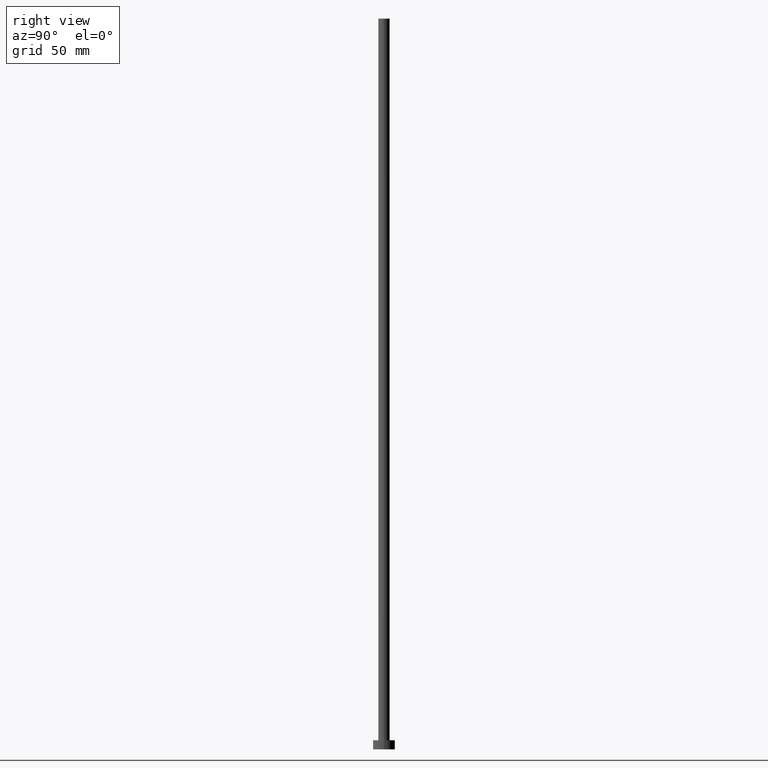
[diagram: clean part render]
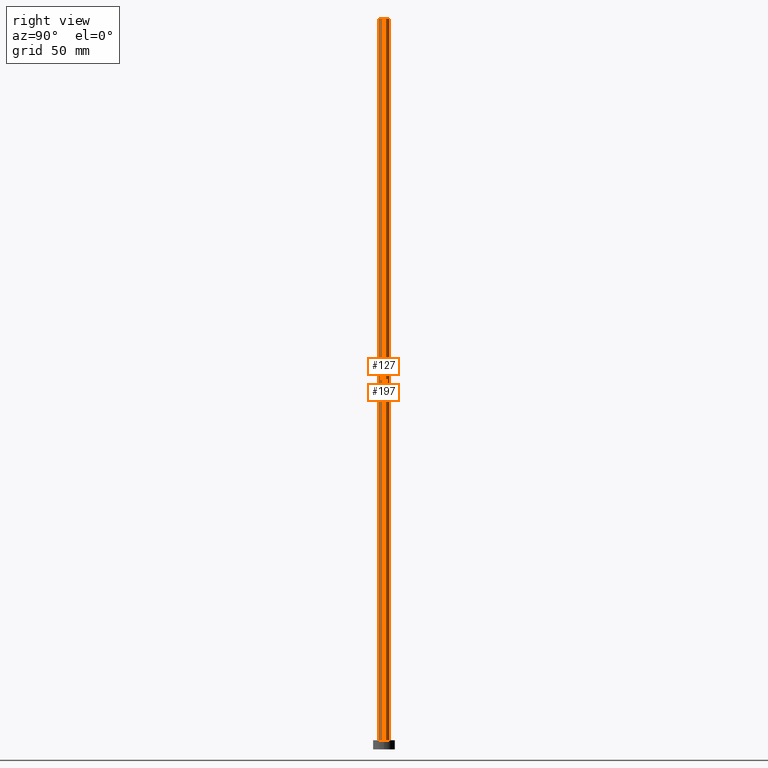
[diagram: same view with one multi-face feature highlighted, each face labeled with its STEP entity id]
A machine part, right view. The highlighted faces form ONE feature: a constant-radius fillet chain: 2 tangent blend faces with common blend radius 3.1 mm. The faces share edges in the B-rep.
Their STEP definitions:
[1] entity #127 (Cylinder):
#2 = CARTESIAN_POINT ( 'NONE',  ( 0.000000000000000000, 0.000000000000000000, 400.0000000000000000 ) ) ;
#11 = EDGE_CURVE ( 'NONE', #109, #32, #248, .T. ) ;
#15 = VERTEX_POINT ( 'NONE', #210 ) ;
#23 = DIRECTION ( 'NONE',  ( -0.000000000000000000, -0.000000000000000000, -1.000000000000000000 ) ) ;
#25 = VERTEX_POINT ( 'NONE', #168 ) ;
#28 = DIRECTION ( 'NONE',  ( 0.000000000000000000, 0.000000000000000000, 1.000000000000000000 ) ) ;
#32 = VERTEX_POINT ( 'NONE', #238 ) ;
#36 = EDGE_CURVE ( 'NONE', #109, #15, #208, .T. ) ;
#51 = EDGE_LOOP ( 'NONE', ( #201, #76, #134, #213 ) ) ;
#61 = CARTESIAN_POINT ( 'NONE',  ( 0.000000000000000000, 0.000000000000000000, 5.000000000000000000 ) ) ;
#69 = CARTESIAN_POINT ( 'NONE',  ( -3.100000000000000089, 0.000000000000000000, 400.0000000000000000 ) ) ;
#76 = ORIENTED_EDGE ( 'NONE', *, *, #36, .F. ) ;
#81 = EDGE_CURVE ( 'NONE', #15, #25, #218, .T. ) ;
#87 = DIRECTION ( 'NONE',  ( 1.000000000000000000, 0.000000000000000000, 0.000000000000000000 ) ) ;
#97 = AXIS2_PLACEMENT_3D ( 'NONE', #113, #148, #87 ) ;
#109 = VERTEX_POINT ( 'NONE', #170 ) ;
#112 = VECTOR ( 'NONE', #144, 1000.000000000000000 ) ;
#113 = CARTESIAN_POINT ( 'NONE',  ( 0.000000000000000000, 0.000000000000000000, 400.0000000000000000 ) ) ;
#120 = AXIS2_PLACEMENT_3D ( 'NONE', #61, #28, #137 ) ;
#123 = EDGE_CURVE ( 'NONE', #32, #25, #187, .T. ) ;
#127 = ADVANCED_FACE ( 'NONE', ( #175 ), #135, .T. ) ;
#134 = ORIENTED_EDGE ( 'NONE', *, *, #11, .T. ) ;
#135 = CYLINDRICAL_SURFACE ( 'NONE', #141, 3.100000000000000089 ) ;
#137 = DIRECTION ( 'NONE',  ( 1.000000000000000000, 0.000000000000000000, 0.000000000000000000 ) ) ;
#141 = AXIS2_PLACEMENT_3D ( 'NONE', #2, #176, #153 ) ;
#144 = DIRECTION ( 'NONE',  ( -0.000000000000000000, -0.000000000000000000, -1.000000000000000000 ) ) ;
#148 = DIRECTION ( 'NONE',  ( 0.000000000000000000, 0.000000000000000000, 1.000000000000000000 ) ) ;
#153 = DIRECTION ( 'NONE',  ( -1.000000000000000000, 0.000000000000000000, 0.000000000000000000 ) ) ;
#165 = VECTOR ( 'NONE', #23, 1000.000000000000000 ) ;
#168 = CARTESIAN_POINT ( 'NONE',  ( 3.100000000000000089, 3.796405077356793932E-16, 5.000000000000000000 ) ) ;
#170 = CARTESIAN_POINT ( 'NONE',  ( -3.100000000000000089, 0.000000000000000000, 400.0000000000000000 ) ) ;
#175 = FACE_OUTER_BOUND ( 'NONE', #51, .T. ) ;
#176 = DIRECTION ( 'NONE',  ( -0.000000000000000000, -0.000000000000000000, -1.000000000000000000 ) ) ;
#187 = CIRCLE ( 'NONE', #120, 3.100000000000000089 ) ;
#192 = CARTESIAN_POINT ( 'NONE',  ( 3.100000000000000089, 3.796405077356793932E-16, 400.0000000000000000 ) ) ;
#201 = ORIENTED_EDGE ( 'NONE', *, *, #81, .F. ) ;
#208 = CIRCLE ( 'NONE', #97, 3.100000000000000089 ) ;
#210 = CARTESIAN_POINT ( 'NONE',  ( 3.100000000000000089, 3.796405077356793932E-16, 400.0000000000000000 ) ) ;
#213 = ORIENTED_EDGE ( 'NONE', *, *, #123, .T. ) ;
#218 = LINE ( 'NONE', #192, #165 ) ;
#238 = CARTESIAN_POINT ( 'NONE',  ( -3.100000000000000089, 0.000000000000000000, 5.000000000000000000 ) ) ;
#248 = LINE ( 'NONE', #69, #112 ) ;
[2] entity #197 (Cylinder):
#4 = DIRECTION ( 'NONE',  ( -0.000000000000000000, -0.000000000000000000, -1.000000000000000000 ) ) ;
#6 = ORIENTED_EDGE ( 'NONE', *, *, #38, .T. ) ;
#11 = EDGE_CURVE ( 'NONE', #109, #32, #248, .T. ) ;
#15 = VERTEX_POINT ( 'NONE', #210 ) ;
#23 = DIRECTION ( 'NONE',  ( -0.000000000000000000, -0.000000000000000000, -1.000000000000000000 ) ) ;
#25 = VERTEX_POINT ( 'NONE', #168 ) ;
#26 = DIRECTION ( 'NONE',  ( 0.000000000000000000, 0.000000000000000000, 1.000000000000000000 ) ) ;
#27 = AXIS2_PLACEMENT_3D ( 'NONE', #214, #118, #189 ) ;
#32 = VERTEX_POINT ( 'NONE', #238 ) ;
#35 = ORIENTED_EDGE ( 'NONE', *, *, #81, .T. ) ;
#38 = EDGE_CURVE ( 'NONE', #25, #32, #107, .T. ) ;
#52 = ORIENTED_EDGE ( 'NONE', *, *, #104, .F. ) ;
#69 = CARTESIAN_POINT ( 'NONE',  ( -3.100000000000000089, 0.000000000000000000, 400.0000000000000000 ) ) ;
#81 = EDGE_CURVE ( 'NONE', #15, #25, #218, .T. ) ;
#104 = EDGE_CURVE ( 'NONE', #15, #109, #183, .T. ) ;
#107 = CIRCLE ( 'NONE', #27, 3.100000000000000089 ) ;
#109 = VERTEX_POINT ( 'NONE', #170 ) ;
#112 = VECTOR ( 'NONE', #144, 1000.000000000000000 ) ;
#118 = DIRECTION ( 'NONE',  ( 0.000000000000000000, 0.000000000000000000, 1.000000000000000000 ) ) ;
#124 = CYLINDRICAL_SURFACE ( 'NONE', #220, 3.100000000000000089 ) ;
#144 = DIRECTION ( 'NONE',  ( -0.000000000000000000, -0.000000000000000000, -1.000000000000000000 ) ) ;
#155 = DIRECTION ( 'NONE',  ( -1.000000000000000000, 0.000000000000000000, 0.000000000000000000 ) ) ;
#165 = VECTOR ( 'NONE', #23, 1000.000000000000000 ) ;
#168 = CARTESIAN_POINT ( 'NONE',  ( 3.100000000000000089, 3.796405077356793932E-16, 5.000000000000000000 ) ) ;
#170 = CARTESIAN_POINT ( 'NONE',  ( -3.100000000000000089, 0.000000000000000000, 400.0000000000000000 ) ) ;
#172 = DIRECTION ( 'NONE',  ( 1.000000000000000000, 0.000000000000000000, 0.000000000000000000 ) ) ;
#183 = CIRCLE ( 'NONE', #221, 3.100000000000000089 ) ;
#189 = DIRECTION ( 'NONE',  ( 1.000000000000000000, 0.000000000000000000, 0.000000000000000000 ) ) ;
#192 = CARTESIAN_POINT ( 'NONE',  ( 3.100000000000000089, 3.796405077356793932E-16, 400.0000000000000000 ) ) ;
#194 = CARTESIAN_POINT ( 'NONE',  ( 0.000000000000000000, 0.000000000000000000, 400.0000000000000000 ) ) ;
#197 = ADVANCED_FACE ( 'NONE', ( #241 ), #124, .T. ) ;
#210 = CARTESIAN_POINT ( 'NONE',  ( 3.100000000000000089, 3.796405077356793932E-16, 400.0000000000000000 ) ) ;
#214 = CARTESIAN_POINT ( 'NONE',  ( 0.000000000000000000, 0.000000000000000000, 5.000000000000000000 ) ) ;
#216 = ORIENTED_EDGE ( 'NONE', *, *, #11, .F. ) ;
#217 = CARTESIAN_POINT ( 'NONE',  ( 0.000000000000000000, 0.000000000000000000, 400.0000000000000000 ) ) ;
#218 = LINE ( 'NONE', #192, #165 ) ;
#220 = AXIS2_PLACEMENT_3D ( 'NONE', #217, #4, #155 ) ;
#221 = AXIS2_PLACEMENT_3D ( 'NONE', #194, #26, #172 ) ;
#223 = EDGE_LOOP ( 'NONE', ( #52, #35, #6, #216 ) ) ;
#238 = CARTESIAN_POINT ( 'NONE',  ( -3.100000000000000089, 0.000000000000000000, 5.000000000000000000 ) ) ;
#241 = FACE_OUTER_BOUND ( 'NONE', #223, .T. ) ;
#248 = LINE ( 'NONE', #69, #112 ) ;